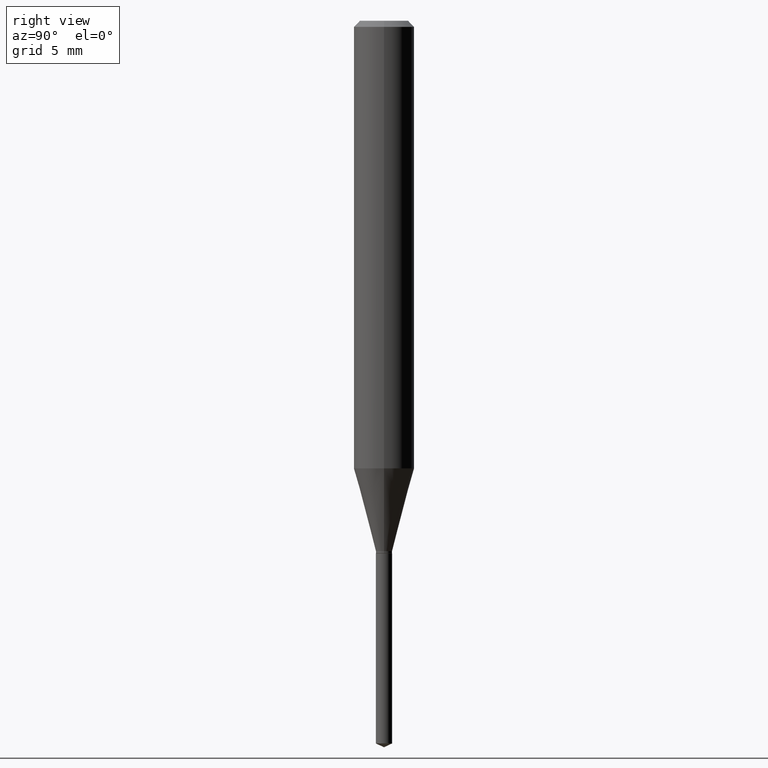
[diagram: clean part render]
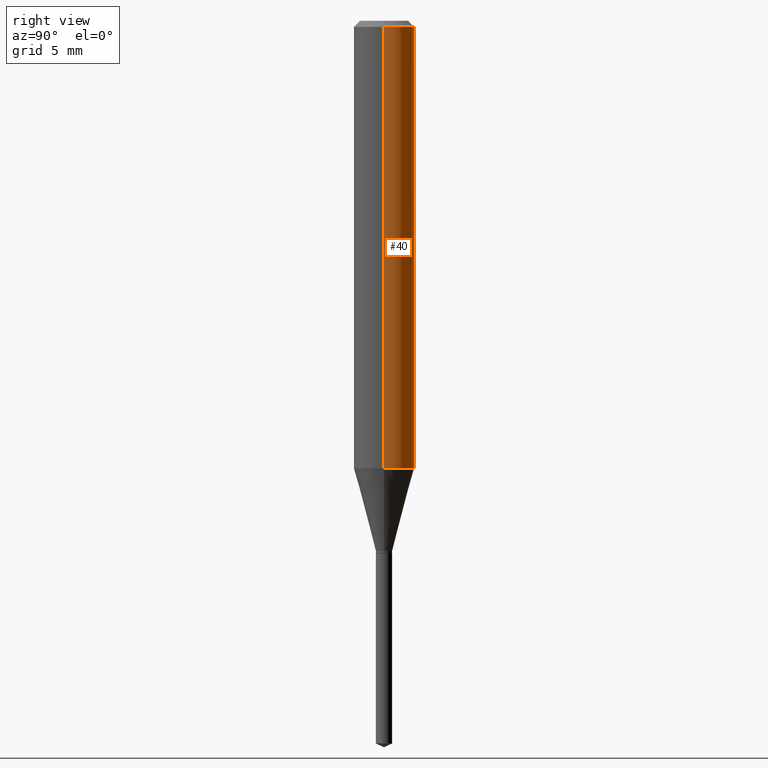
[diagram: same view with one face highlighted and labeled with its STEP entity id]
A machine part, right view. The second image highlights one B-rep face of the part: STEP entity #40.
In plain terms, the highlighted cylindrical surface (edge-blend (fillet) strip) has radius 1.5875 mm, axis along (-0, 0, 1).
Its self-contained STEP definition (entity closure, byte-faithful):
#30 = CARTESIAN_POINT ( 'NONE',  ( 0.06250000000000000000, -4.800786840909312308E-16, -0.01250000000000008223 ) ) ;
#34 = EDGE_CURVE ( 'NONE', #422, #250, #481, .T. ) ;
#38 = CARTESIAN_POINT ( 'NONE',  ( 3.056836007731440977E-31, -4.364351673553961068E-17, -0.01250000000000008223 ) ) ;
#40 = ADVANCED_FACE ( 'NONE', ( #78 ), #381, .T. ) ;
#52 = CARTESIAN_POINT ( 'NONE',  ( 2.260245759912620669E-29, -3.227031917959708248E-15, -0.9242586755537238741 ) ) ;
#54 = DIRECTION ( 'NONE',  ( -2.445468806185136877E-29, 3.491481338843145188E-15, 1.000000000000000000 ) ) ;
#67 = ORIENTED_EDGE ( 'NONE', *, *, #34, .F. ) ;
#78 = FACE_OUTER_BOUND ( 'NONE', #102, .T. ) ;
#94 = LINE ( 'NONE', #110, #247 ) ;
#102 = EDGE_LOOP ( 'NONE', ( #480, #208, #67, #241 ) ) ;
#110 = CARTESIAN_POINT ( 'NONE',  ( 0.06250000000000005551, -4.364351673553921131E-16, 3.047610484872463023E-30 ) ) ;
#113 = CIRCLE ( 'NONE', #287, 0.06250000000000012490 ) ;
#129 = VECTOR ( 'NONE', #54, 39.37007874015748143 ) ;
#170 = VERTEX_POINT ( 'NONE', #297 ) ;
#192 = CARTESIAN_POINT ( 'NONE',  ( -0.06250000000000000000, -1.191248507497560105E-15, -0.01250000000000008223 ) ) ;
#201 = DIRECTION ( 'NONE',  ( 1.000000000000000000, -6.982962677686264344E-15, 0.000000000000000000 ) ) ;
#208 = ORIENTED_EDGE ( 'NONE', *, *, #350, .T. ) ;
#221 = DIRECTION ( 'NONE',  ( -2.445468806185136597E-29, 3.491481338843145583E-15, 1.000000000000000000 ) ) ;
#231 = CARTESIAN_POINT ( 'NONE',  ( -0.06250000000000012490, -2.782942708109644843E-15, -0.9242586755537238741 ) ) ;
#240 = CARTESIAN_POINT ( 'NONE',  ( -0.06250000000000005551, 4.440892098500630106E-16, -3.074334431409318916E-30 ) ) ;
#241 = ORIENTED_EDGE ( 'NONE', *, *, #334, .F. ) ;
#247 = VECTOR ( 'NONE', #395, 39.37007874015748143 ) ;
#250 = VERTEX_POINT ( 'NONE', #192 ) ;
#262 = AXIS2_PLACEMENT_3D ( 'NONE', #38, #221, #336 ) ;
#287 = AXIS2_PLACEMENT_3D ( 'NONE', #52, #320, #201 ) ;
#288 = VERTEX_POINT ( 'NONE', #231 ) ;
#295 = AXIS2_PLACEMENT_3D ( 'NONE', #446, #375, #300 ) ;
#297 = CARTESIAN_POINT ( 'NONE',  ( 0.06250000000000012490, -3.663467085315101101E-15, -0.9242586755537238741 ) ) ;
#300 = DIRECTION ( 'NONE',  ( 1.000000000000000000, -6.982962677686267499E-15, 4.876176775795936353E-29 ) ) ;
#320 = DIRECTION ( 'NONE',  ( -2.445468806185136597E-29, 3.491481338843145583E-15, 1.000000000000000000 ) ) ;
#323 = EDGE_CURVE ( 'NONE', #170, #288, #113, .T. ) ;
#334 = EDGE_CURVE ( 'NONE', #170, #422, #94, .T. ) ;
#336 = DIRECTION ( 'NONE',  ( 1.000000000000000000, -6.982962677686266711E-15, 0.000000000000000000 ) ) ;
#350 = EDGE_CURVE ( 'NONE', #288, #250, #432, .T. ) ;
#375 = DIRECTION ( 'NONE',  ( -2.445468806185136597E-29, 3.491481338843145583E-15, 1.000000000000000000 ) ) ;
#381 = CYLINDRICAL_SURFACE ( 'NONE', #295, 0.06250000000000005551 ) ;
#395 = DIRECTION ( 'NONE',  ( -2.445468806185136877E-29, 3.491481338843145188E-15, 1.000000000000000000 ) ) ;
#422 = VERTEX_POINT ( 'NONE', #30 ) ;
#432 = LINE ( 'NONE', #240, #129 ) ;
#446 = CARTESIAN_POINT ( 'NONE',  ( 0.000000000000000000, 0.000000000000000000, 0.000000000000000000 ) ) ;
#480 = ORIENTED_EDGE ( 'NONE', *, *, #323, .T. ) ;
#481 = CIRCLE ( 'NONE', #262, 0.06250000000000000000 ) ;